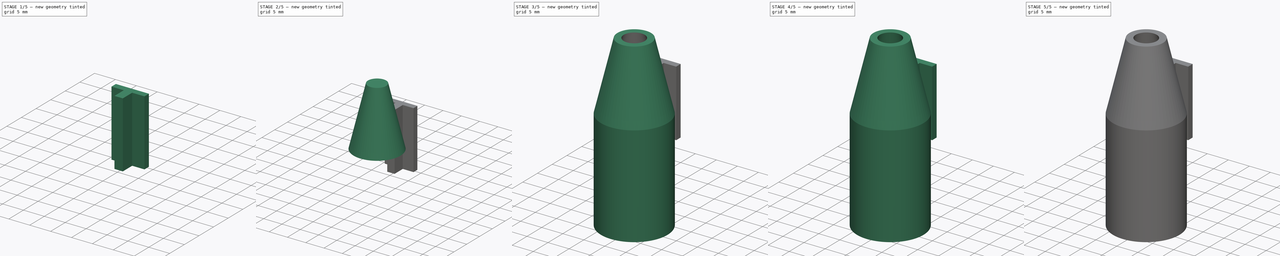
[diagram: build sequence overview — one tinted view per stage of 5, left to right]
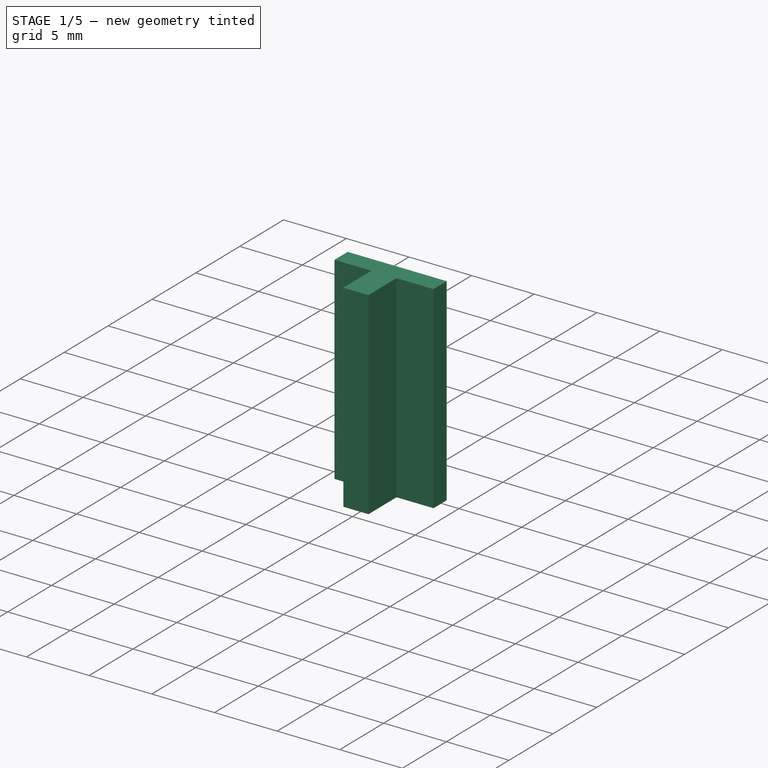
[diagram: stage 1 of 5 — iso view after this stage's code; geometry added in this stage tinted green]
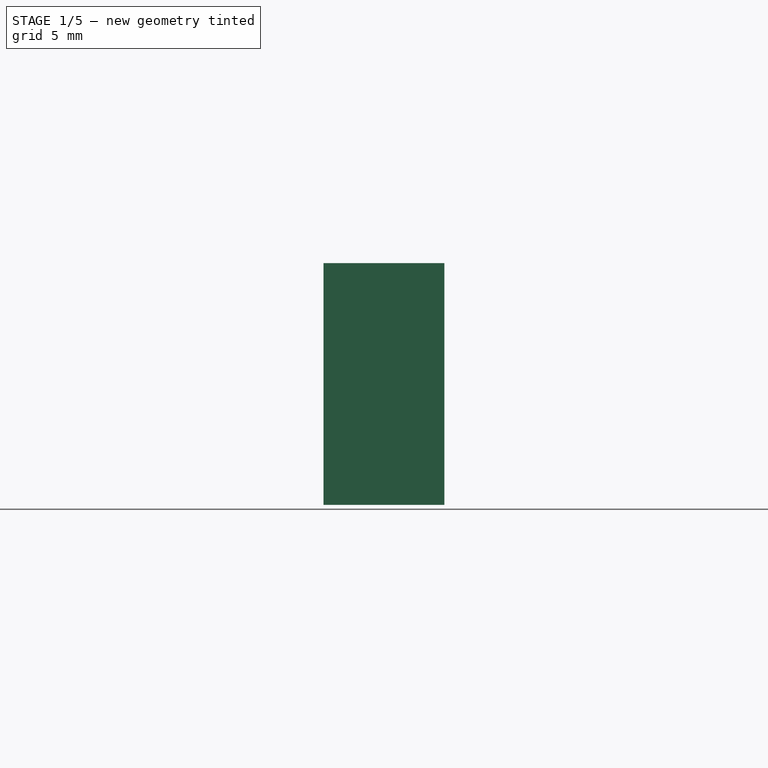
[diagram: stage 1 of 5 — front view after this stage's code; geometry added in this stage tinted green]
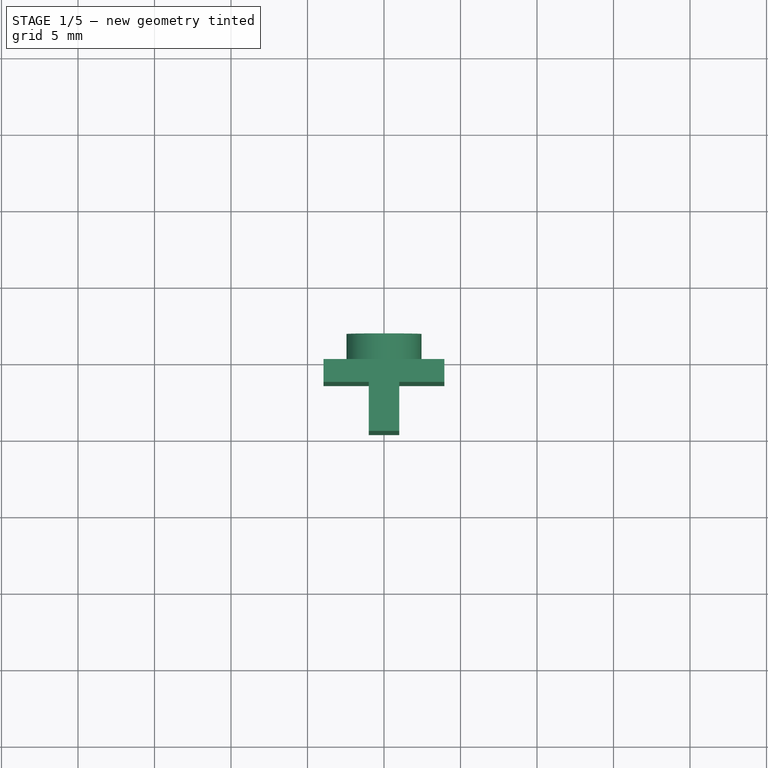
[diagram: stage 1 of 5 — top view after this stage's code; geometry added in this stage tinted green]
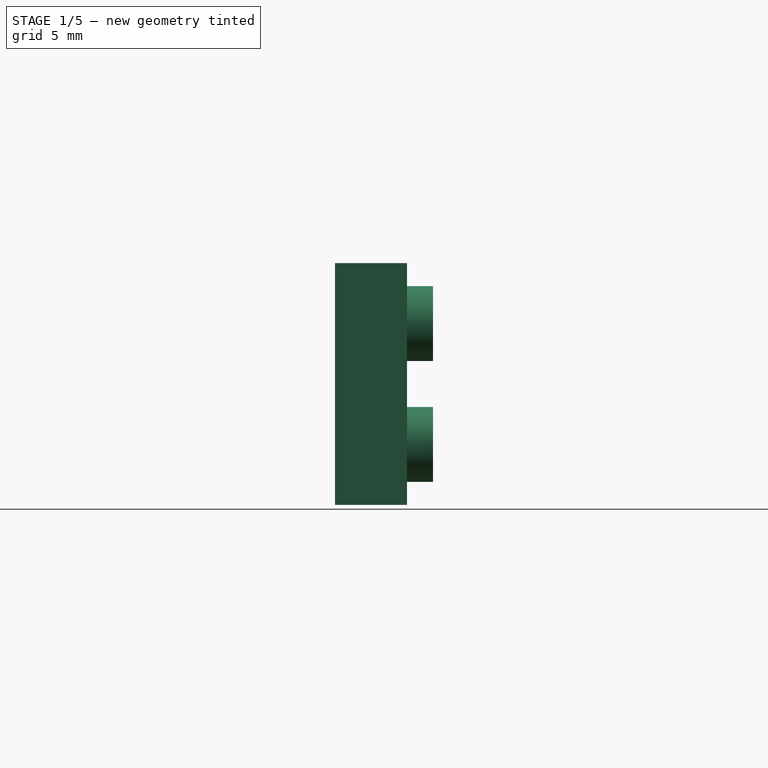
[diagram: stage 1 of 5 — right view after this stage's code; geometry added in this stage tinted green]
FCSTD DOCUMENT  (FreeCAD 0.17R13541 (Git))
Label: Turbine2
License: All rights reserved
LicenseURL: http://en.wikipedia.org/wiki/All_rights_reserved
objects: Part::Cylinder×5, Part::Cut×3, Part::Box×3, Part::Cone×2, Part::Fuse×2, Sketcher::SketchObject×1, PartDesign::Pad×1, PartDesign::PolarPattern×1, PartDesign::Body×1, Part::MultiFuse×1
note: 21 computed .brp shape members not serialized (recipe doc carries the construction recipe); baked Part::Feature solids carry a one-line shape summary decoded from their .brp

FEATURE [PartDesign::Body] Body  label="Blätter"
  Group = -> [Sketch,Pad,PolarPattern]
  Origin = -> Origin
  Placement = pos=(0,0,2) rot=(0,0,1;0rad)
  Tip = -> PolarPattern
FEATURE [Part::Box] Box  label="Würfel"
  AttacherType = Attacher::AttachEngine3D
  Height = 15.8
  Length = 7.9
  Placement = pos=(-3.95,8.6,16) rot=(0,0,1;0rad)
  Width = 1.5
FEATURE [Part::Box] Box001  label="Würfel001"
  AttacherType = Attacher::AttachEngine3D
  Height = 15.8
  Length = 2
  Placement = pos=(-1,5.4,16) rot=(0,0,1;0rad)
  Width = 4.5
FEATURE [Part::Cylinder] Cylinder004  label="Zylinder001"
  Angle = 360
  AttacherType = Attacher::AttachEngine3D
  Height = 1.7
  Placement = pos=(0,10.1,19.95) rot=(-0.158363,0.698184,0.698184;2.82747rad)
  Radius = 2.45
  expr: Radius = 4.9000000000000004 / 2
FEATURE [Part::Cylinder] Cylinder005  label="Zylinder002"
  Angle = 360
  AttacherType = Attacher::AttachEngine3D
  Height = 1.7
  Placement = pos=(0,10.1,27.85) rot=(-0.158363,0.698184,0.698184;2.82747rad)
  Radius = 2.45
  expr: Radius = 4.9000000000000004 / 2
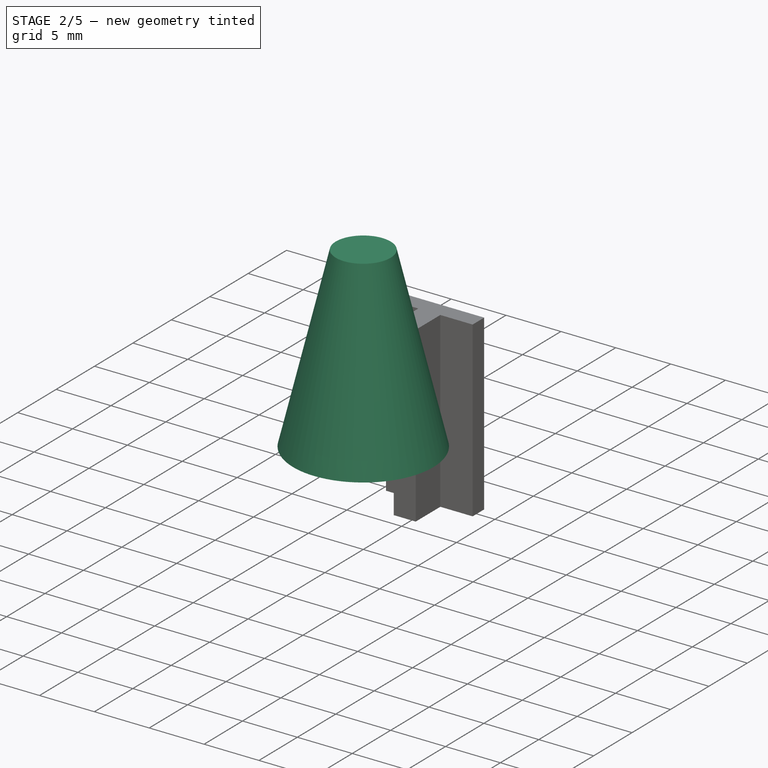
[diagram: stage 2 of 5 — iso view after this stage's code; geometry added in this stage tinted green]
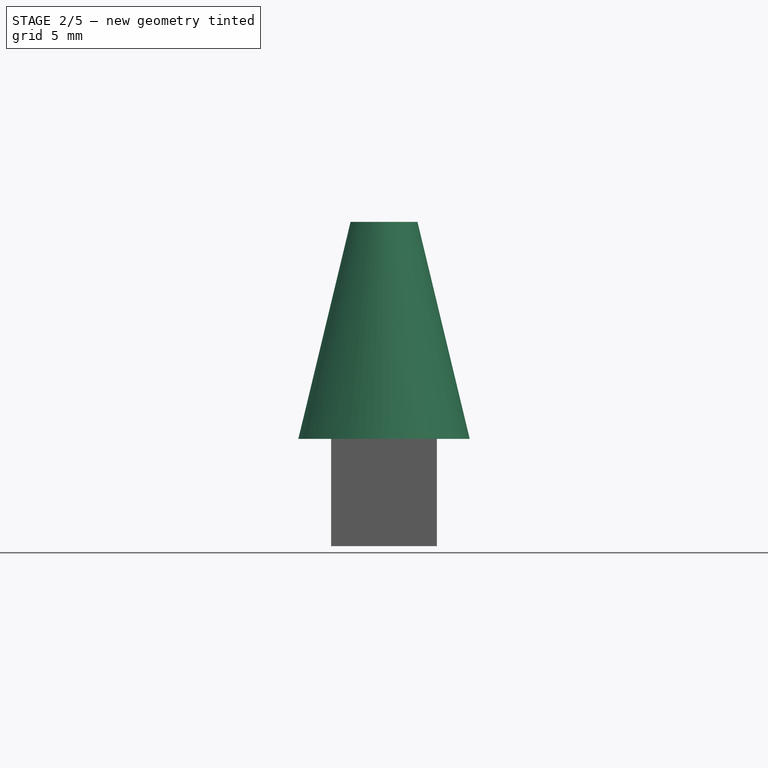
[diagram: stage 2 of 5 — front view after this stage's code; geometry added in this stage tinted green]
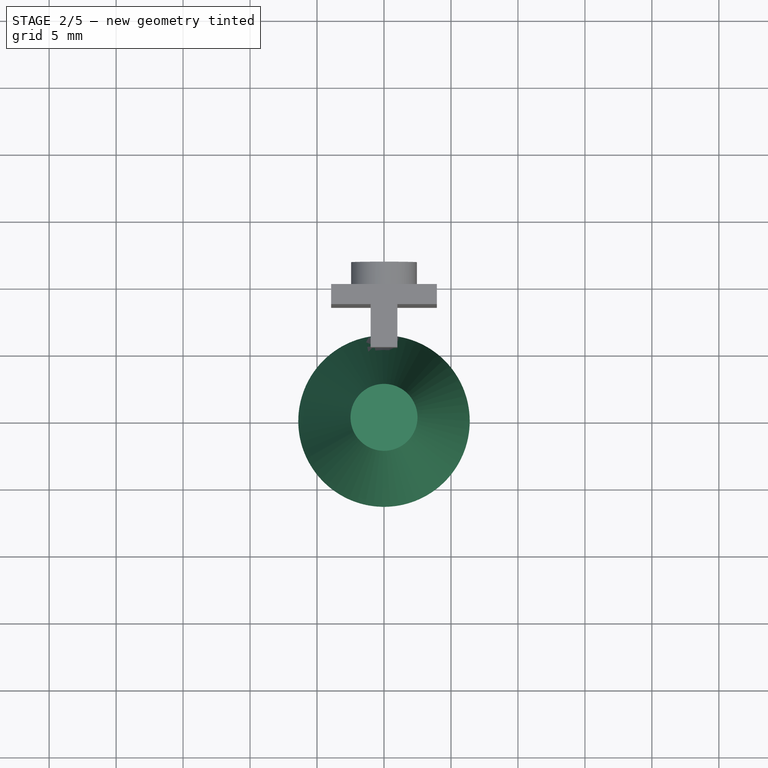
[diagram: stage 2 of 5 — top view after this stage's code; geometry added in this stage tinted green]
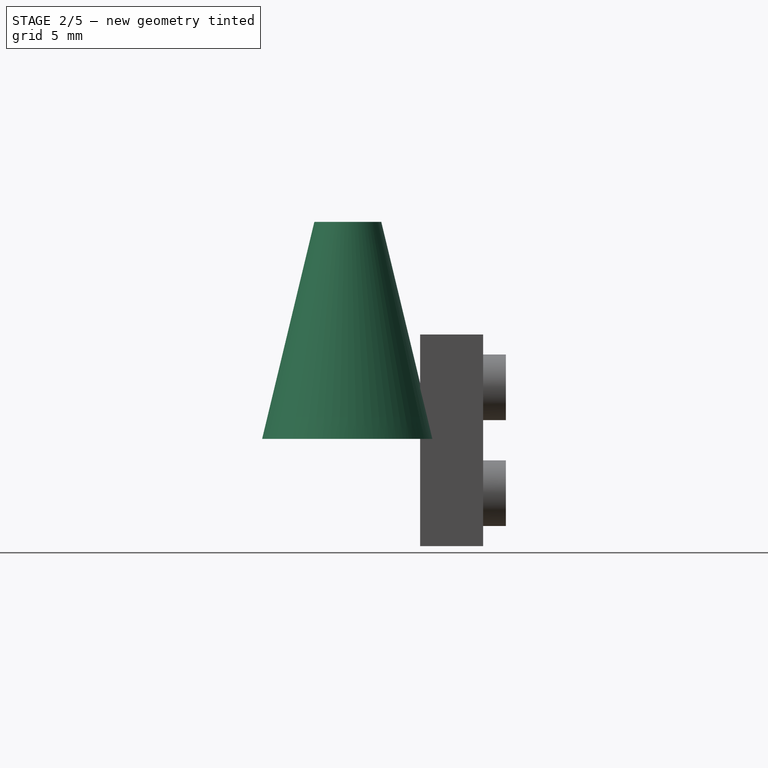
[diagram: stage 2 of 5 — right view after this stage's code; geometry added in this stage tinted green]
FEATURE [Part::Cone] Cone001  label="Kegel001"
  Angle = 360
  AttacherType = Attacher::AttachEngine3D
  Height = 16.2
  Placement = pos=(0,0,24) rot=(-0.995976,-0.089621,0;0rad)
  Radius1 = 6.4
  Radius2 = 2.5
FEATURE [Part::Box] Box002  label="Schlitz"
  AttacherType = Attacher::AttachEngine3D
  Height = 15.8
  Length = 2
  Placement = pos=(-1,5.4,16) rot=(0,0,1;0rad)
  Width = 4.5
FEATURE [Part::MultiFuse] Fusion002  label="Aufhängung"
  Shapes = -> [Cylinder005,Box,Cylinder004,Box001]
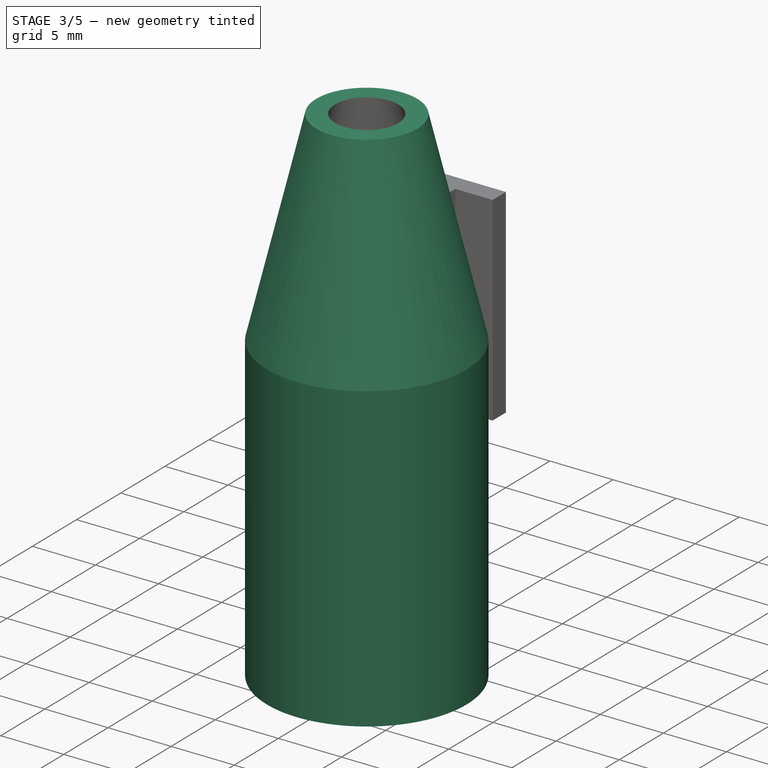
[diagram: stage 3 of 5 — iso view after this stage's code; geometry added in this stage tinted green]
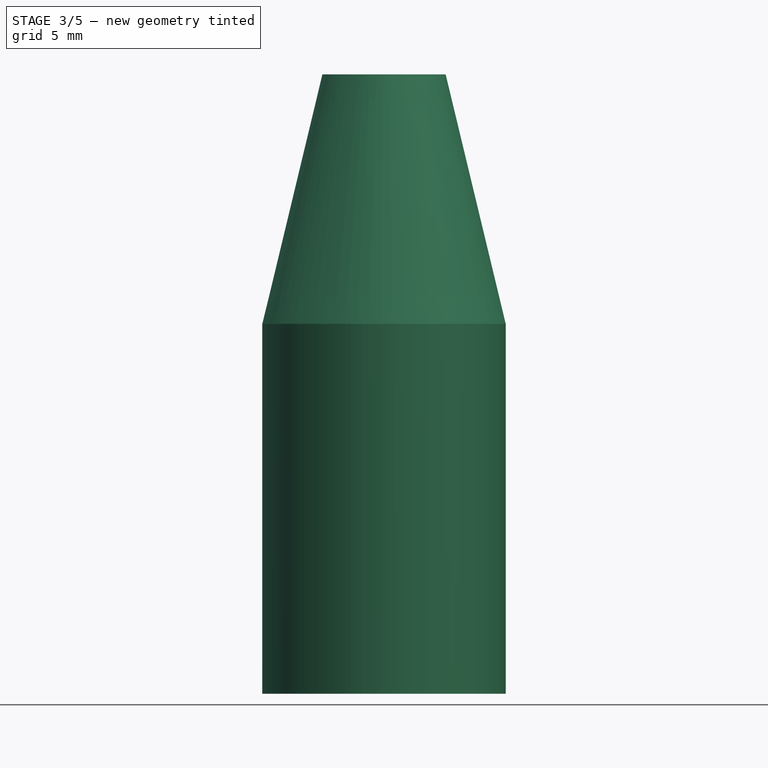
[diagram: stage 3 of 5 — front view after this stage's code; geometry added in this stage tinted green]
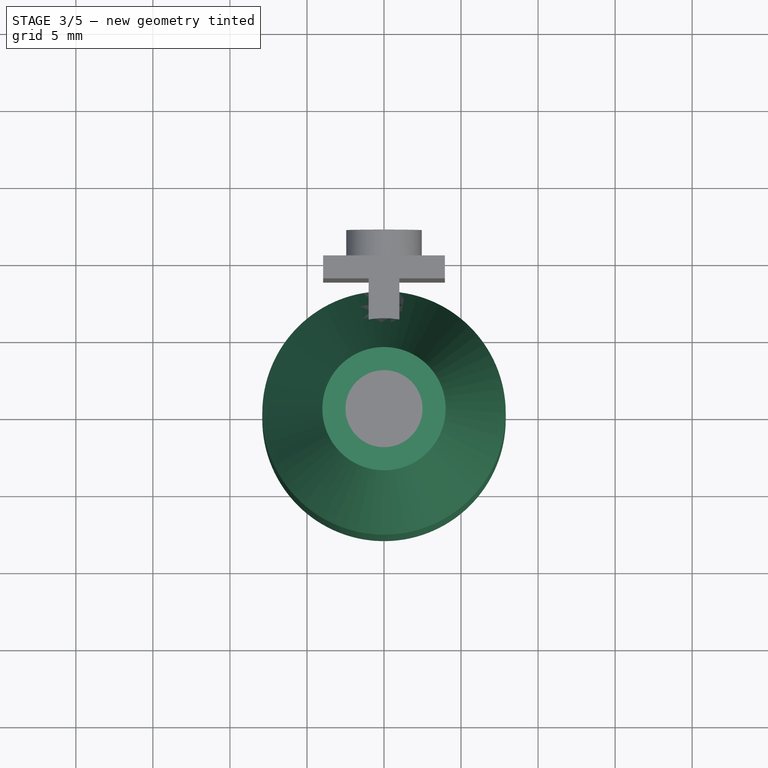
[diagram: stage 3 of 5 — top view after this stage's code; geometry added in this stage tinted green]
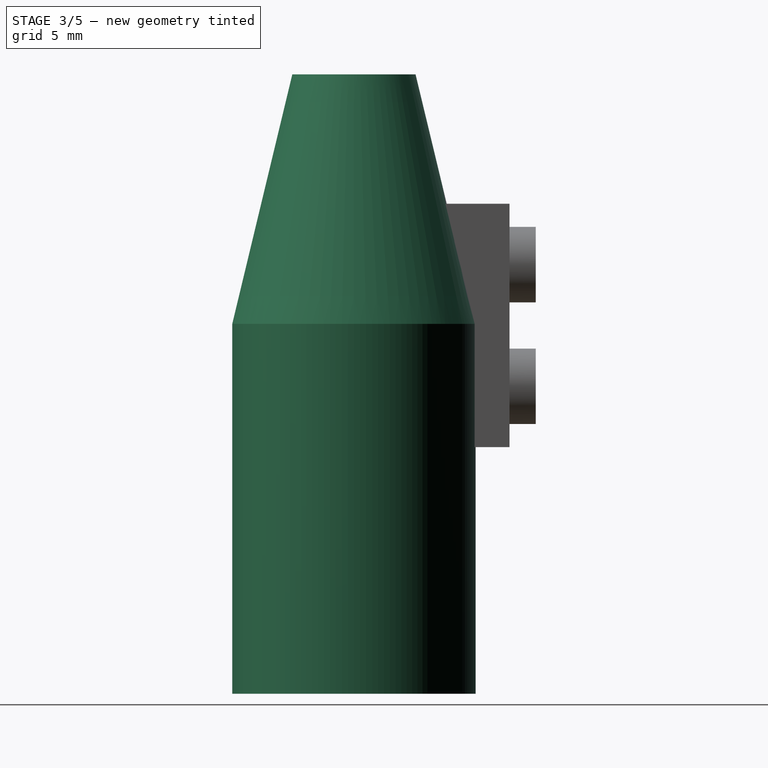
[diagram: stage 3 of 5 — right view after this stage's code; geometry added in this stage tinted green]
FEATURE [Part::Cylinder] Cylinder  label="Zylinder"
  Angle = 360
  AttacherType = Attacher::AttachEngine3D
  Height = 24
  Radius = 7.9
  expr: Radius = 15.800000000000001 / 2
FEATURE [Part::Cone] Cone  label="Kegel"
  Angle = 360
  AttacherType = Attacher::AttachEngine3D
  Height = 16.2
  Placement = pos=(0,0,24) rot=(-0.995976,-0.089621,0;0rad)
  Radius1 = 7.9
  Radius2 = 4
FEATURE [Part::Cylinder] Cylinder001  label="Loch_vorne"
  Angle = 360
  AttacherType = Attacher::AttachEngine3D
  Height = 24
  Radius = 6.4
  expr: Radius = 12.800000000000001 / 2
FEATURE [Part::Cut] Cut001
  Base = -> Cone
  Tool = -> Cone001
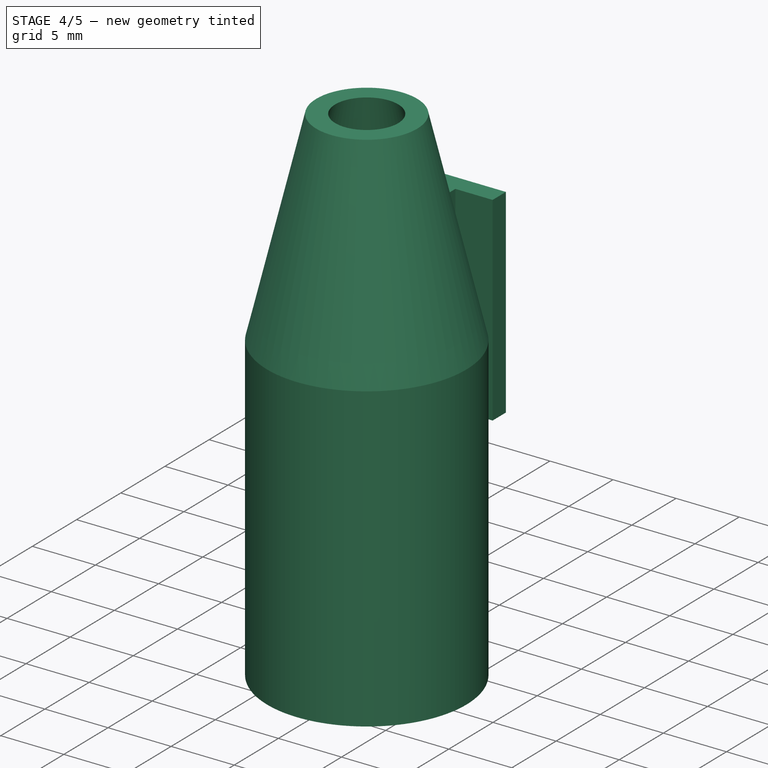
[diagram: stage 4 of 5 — iso view after this stage's code; geometry added in this stage tinted green]
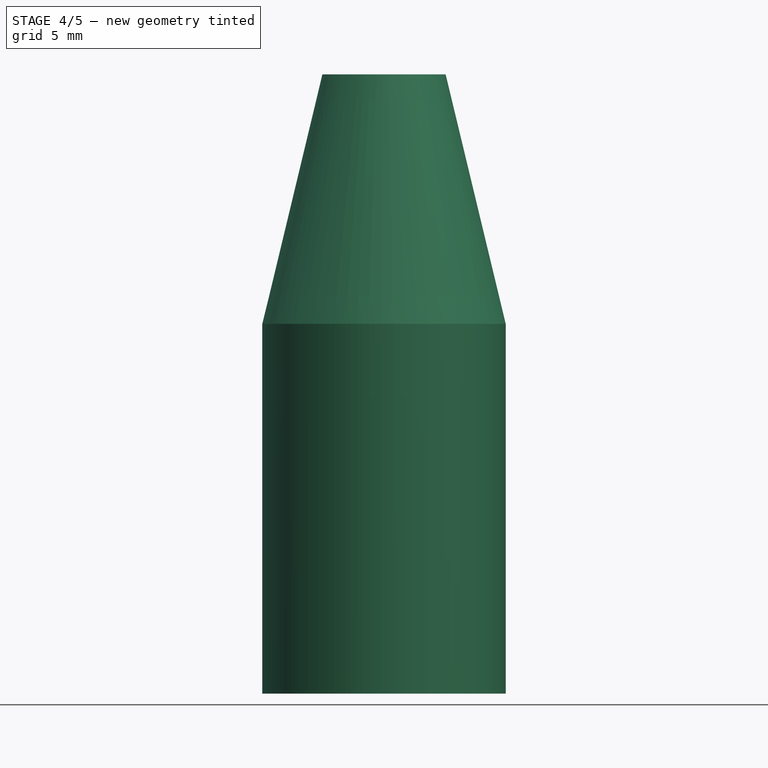
[diagram: stage 4 of 5 — front view after this stage's code; geometry added in this stage tinted green]
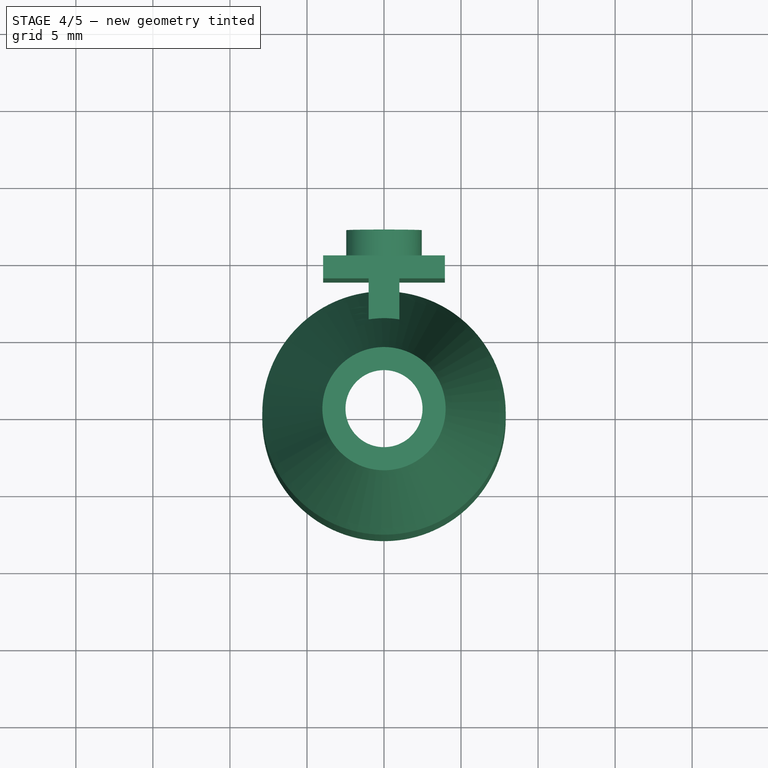
[diagram: stage 4 of 5 — top view after this stage's code; geometry added in this stage tinted green]
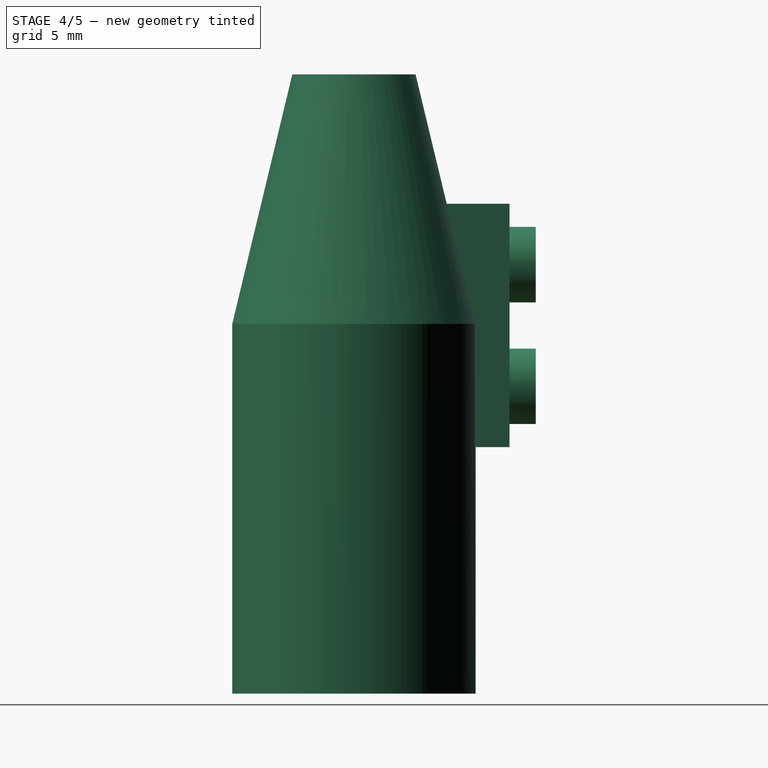
[diagram: stage 4 of 5 — right view after this stage's code; geometry added in this stage tinted green]
FEATURE [Part::Cut] Cut
  Base = -> Cylinder
  Tool = -> Cylinder001
FEATURE [Part::Fuse] Fusion001  label="Gehäuse"
  Base = -> Cut
  Tool = -> Cut001
FEATURE [Part::Cut] Cut002  label="Gehäuse mit Schlitz"
  Base = -> Fusion001
  Tool = -> Box002
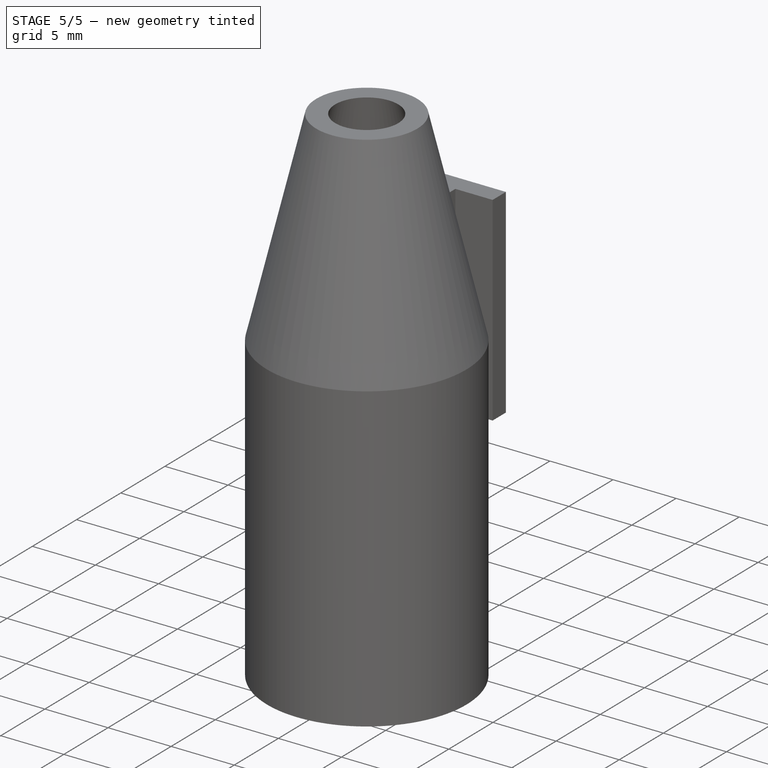
[diagram: stage 5 of 5 — iso view after this stage's code; geometry added in this stage tinted green]
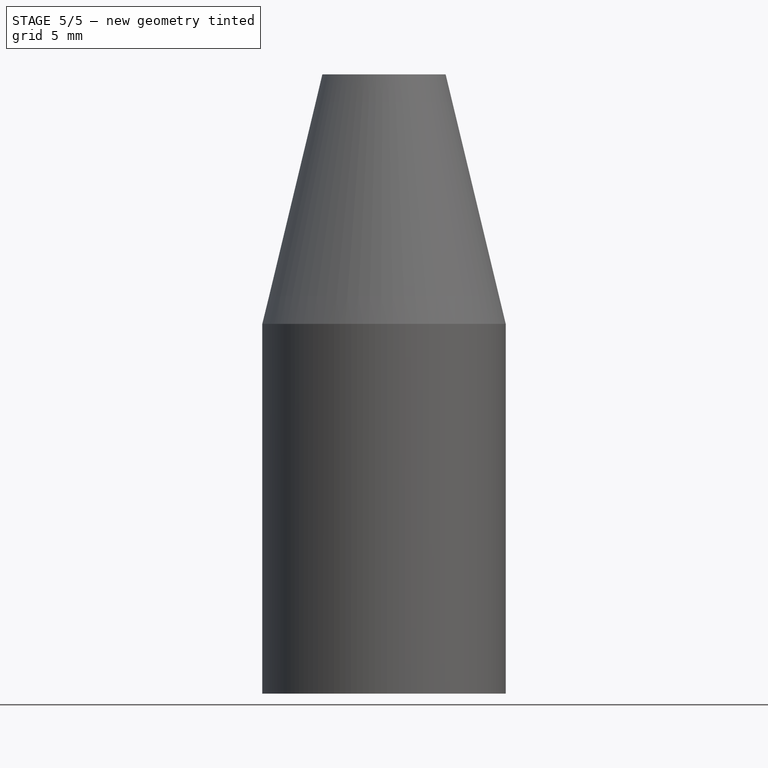
[diagram: stage 5 of 5 — front view after this stage's code; geometry added in this stage tinted green]
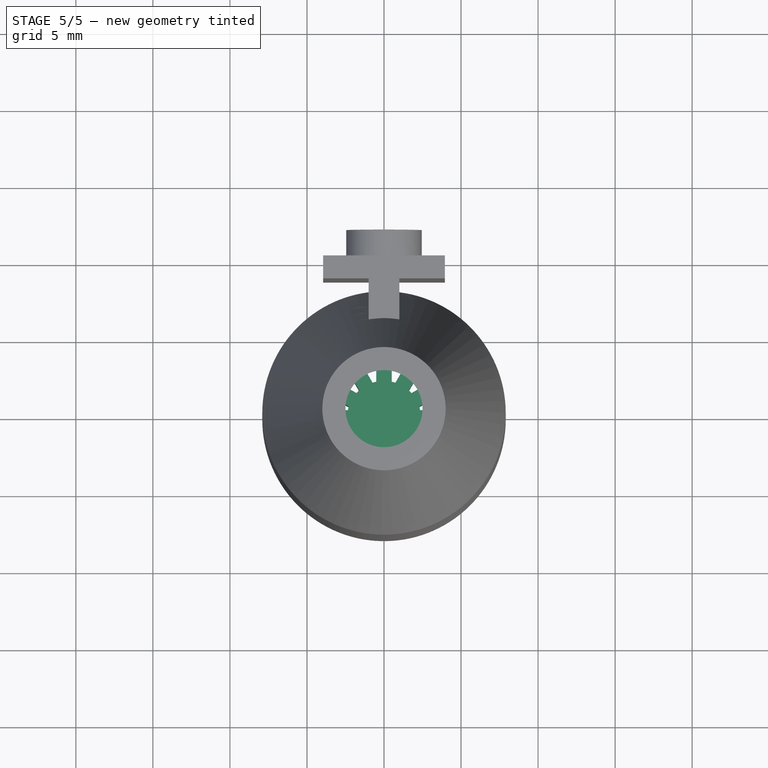
[diagram: stage 5 of 5 — top view after this stage's code; geometry added in this stage tinted green]
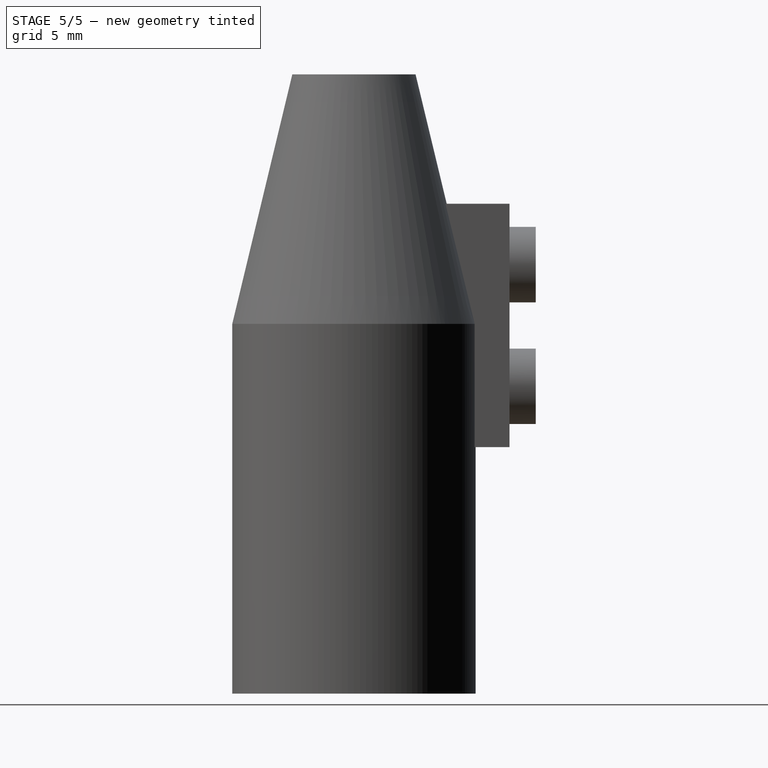
[diagram: stage 5 of 5 — right view after this stage's code; geometry added in this stage tinted green]
FEATURE [Part::Cylinder] Cylinder002  label="Achse"
  Angle = 360
  AttacherType = Attacher::AttachEngine3D
  Height = 6
  Radius = 2.4
  expr: Radius = 4.7999999999999998 / 2
FEATURE [Sketcher::SketchObject] Sketch
  MapMode = 5
  Support = -> [XY_Plane]
  sketch-geometry (4):
    g0: LineSegment StartX=-6.3 StartY=0.5 StartZ=0 EndX=0 EndY=0.5 EndZ=0
    g1: LineSegment StartX=0 StartY=0.5 StartZ=0 EndX=0 EndY=-0.5 EndZ=0
    g2: LineSegment StartX=0 StartY=-0.5 StartZ=0 EndX=-6.3 EndY=-0.5 EndZ=0
    g3: LineSegment StartX=-6.3 StartY=-0.5 StartZ=0 EndX=-6.3 EndY=0.5 EndZ=0
  constraints (12):
    c: Coincident(g0,g1)
    c: Coincident(g1,g2)
    c: Coincident(g2,g3)
    c: Coincident(g3,g0)
    c: Horizontal(g0)
    c: Horizontal(g2)
    c: Vertical(g1)
    c: Vertical(g3)
    c: PointOnObject(g1,g-2)
    c: DistanceY(g3,g3) = 1
    c: Symmetric(g0,g1,g-1)
    c: DistanceX(g0,g0) = 6.3
FEATURE [PartDesign::Pad] Pad
  Length = 4
  Length2 = 100
  Profile = -> Sketch
  Type = 0
FEATURE [PartDesign::PolarPattern] PolarPattern
  Angle = 360
  Axis = -> Sketch [N_Axis]
  BaseFeature = -> Pad
  Occurrences = 12
  Originals = -> [Pad]
FEATURE [Part::Fuse] Fusion  label="Schaufelräder"
  Base = -> Cylinder002
  Tool = -> Body
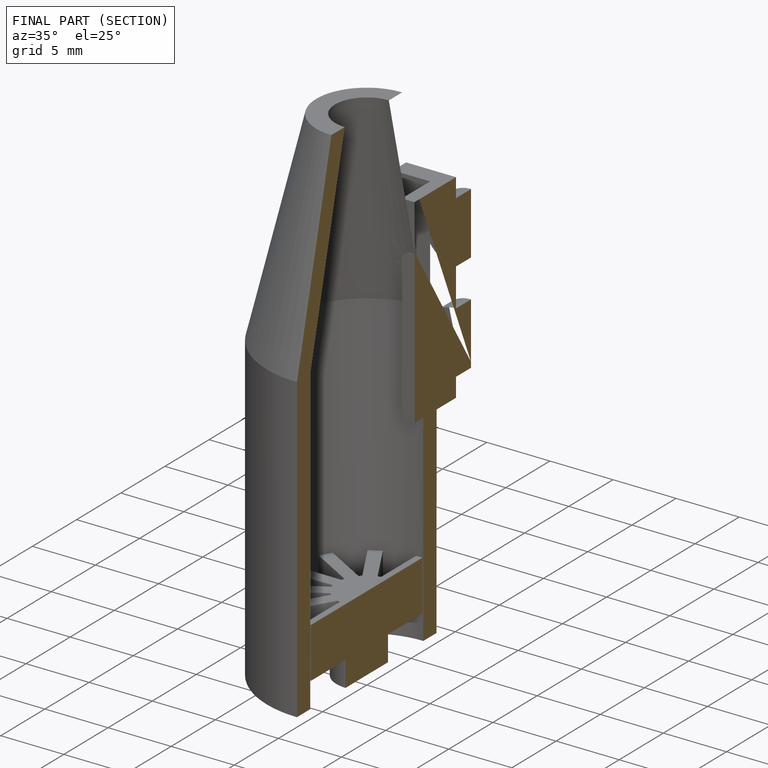
[diagram: finished part — half-section view (interior)]
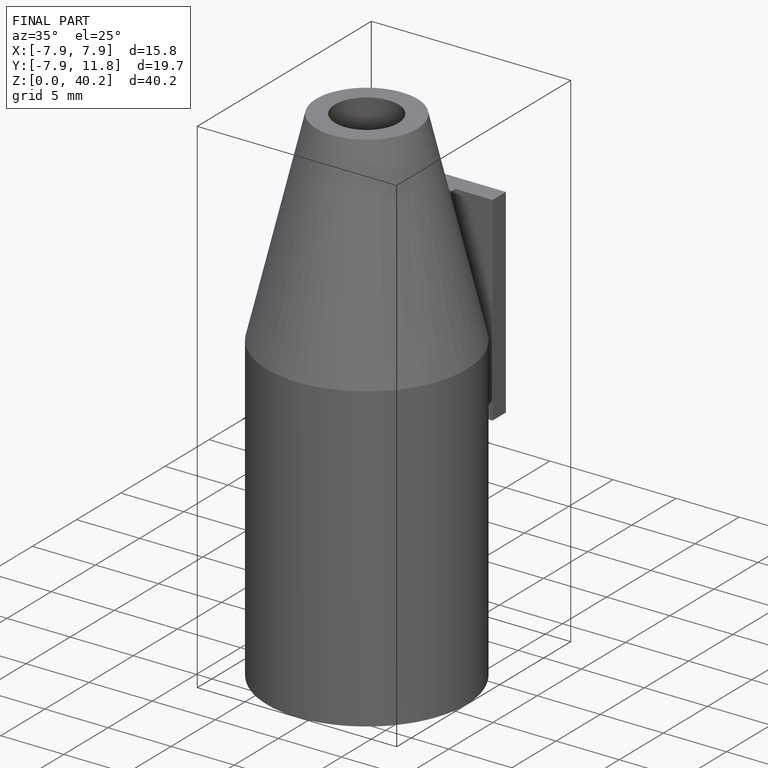
[diagram: finished part — iso view with bounding-box wireframe]
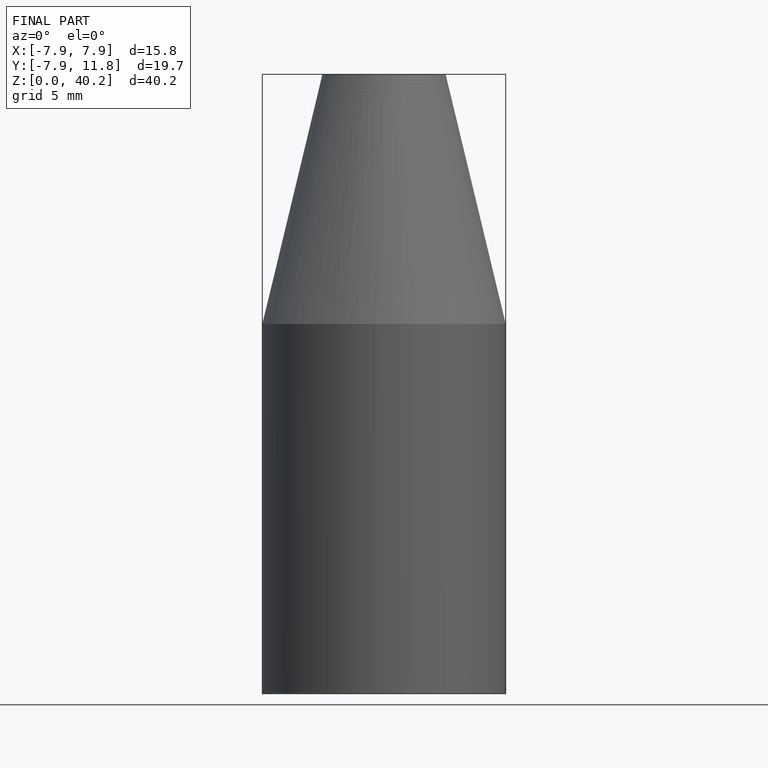
[diagram: finished part — front view with bounding-box wireframe]
